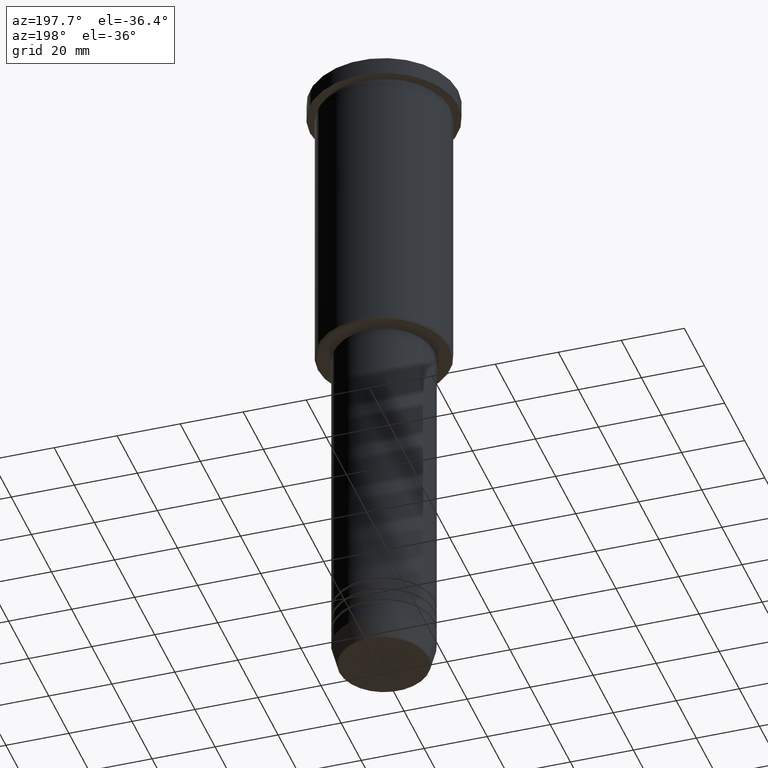
[diagram: clean part render]
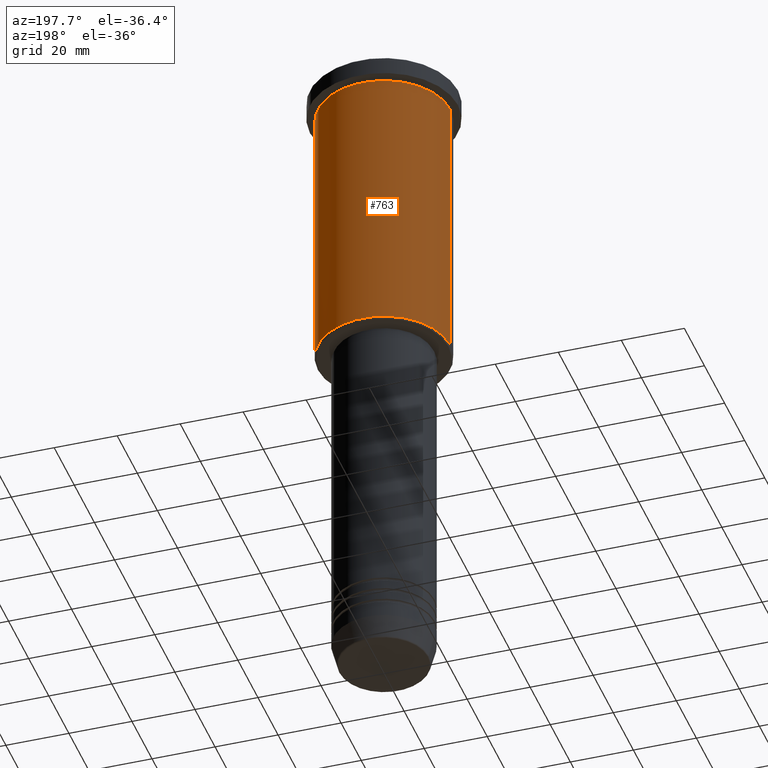
[diagram: same view with one face highlighted and labeled with its STEP entity id]
A machine part, auxiliary view. The second image highlights one B-rep face of the part: STEP entity #763.
In plain terms, the highlighted cylindrical surface (partial cylindrical patch) has radius 21 mm, axis along (-0, -0, 1).
Its self-contained STEP definition (entity closure, byte-faithful):
#4 = LINE ( 'NONE', #735, #821 ) ;
#48 = DIRECTION ( 'NONE',  ( -0.000000000000000000, -0.000000000000000000, 1.000000000000000000 ) ) ;
#62 = AXIS2_PLACEMENT_3D ( 'NONE', #594, #1045, #1057 ) ;
#69 = EDGE_CURVE ( 'NONE', #107, #564, #898, .T. ) ;
#107 = VERTEX_POINT ( 'NONE', #1064 ) ;
#113 = EDGE_CURVE ( 'NONE', #1084, #1150, #193, .T. ) ;
#119 = CARTESIAN_POINT ( 'NONE',  ( -21.00000000000000000, 2.571758278209441661E-15, -6.999999999999993783 ) ) ;
#170 = DIRECTION ( 'NONE',  ( -0.000000000000000000, -0.000000000000000000, 1.000000000000000000 ) ) ;
#193 = CIRCLE ( 'NONE', #257, 21.00000000000000000 ) ;
#257 = AXIS2_PLACEMENT_3D ( 'NONE', #944, #48, #960 ) ;
#266 = EDGE_CURVE ( 'NONE', #1084, #107, #4, .T. ) ;
#268 = DIRECTION ( 'NONE',  ( -0.000000000000000000, -0.000000000000000000, 1.000000000000000000 ) ) ;
#322 = CARTESIAN_POINT ( 'NONE',  ( 21.00000000000000000, 0.000000000000000000, -95.50000000000000000 ) ) ;
#461 = LINE ( 'NONE', #1103, #559 ) ;
#480 = ORIENTED_EDGE ( 'NONE', *, *, #792, .T. ) ;
#506 = ORIENTED_EDGE ( 'NONE', *, *, #113, .T. ) ;
#515 = ORIENTED_EDGE ( 'NONE', *, *, #69, .F. ) ;
#559 = VECTOR ( 'NONE', #170, 1000.000000000000000 ) ;
#564 = VERTEX_POINT ( 'NONE', #119 ) ;
#594 = CARTESIAN_POINT ( 'NONE',  ( 0.000000000000000000, 0.000000000000000000, -6.999999999999993783 ) ) ;
#609 = DIRECTION ( 'NONE',  ( -0.000000000000000000, -0.000000000000000000, 1.000000000000000000 ) ) ;
#614 = CARTESIAN_POINT ( 'NONE',  ( 0.000000000000000000, 0.000000000000000000, 0.000000000000000000 ) ) ;
#674 = CARTESIAN_POINT ( 'NONE',  ( -21.00000000000000000, 2.571758278209441661E-15, -95.50000000000000000 ) ) ;
#712 = ORIENTED_EDGE ( 'NONE', *, *, #266, .F. ) ;
#722 = DIRECTION ( 'NONE',  ( 1.000000000000000000, 0.000000000000000000, 0.000000000000000000 ) ) ;
#733 = FACE_OUTER_BOUND ( 'NONE', #987, .T. ) ;
#735 = CARTESIAN_POINT ( 'NONE',  ( 21.00000000000000000, 0.000000000000000000, 0.000000000000000000 ) ) ;
#763 = ADVANCED_FACE ( 'NONE', ( #733 ), #1166, .T. ) ;
#792 = EDGE_CURVE ( 'NONE', #1150, #564, #461, .T. ) ;
#821 = VECTOR ( 'NONE', #609, 1000.000000000000000 ) ;
#898 = CIRCLE ( 'NONE', #62, 21.00000000000000000 ) ;
#944 = CARTESIAN_POINT ( 'NONE',  ( 0.000000000000000000, 0.000000000000000000, -95.50000000000000000 ) ) ;
#960 = DIRECTION ( 'NONE',  ( -1.000000000000000000, 0.000000000000000000, 0.000000000000000000 ) ) ;
#987 = EDGE_LOOP ( 'NONE', ( #506, #480, #515, #712 ) ) ;
#1045 = DIRECTION ( 'NONE',  ( -0.000000000000000000, -0.000000000000000000, 1.000000000000000000 ) ) ;
#1057 = DIRECTION ( 'NONE',  ( 1.000000000000000000, 0.000000000000000000, 0.000000000000000000 ) ) ;
#1064 = CARTESIAN_POINT ( 'NONE',  ( 21.00000000000000000, 0.000000000000000000, -6.999999999999993783 ) ) ;
#1079 = AXIS2_PLACEMENT_3D ( 'NONE', #614, #268, #722 ) ;
#1084 = VERTEX_POINT ( 'NONE', #322 ) ;
#1103 = CARTESIAN_POINT ( 'NONE',  ( -21.00000000000000000, 2.571758278209441661E-15, 0.000000000000000000 ) ) ;
#1150 = VERTEX_POINT ( 'NONE', #674 ) ;
#1166 = CYLINDRICAL_SURFACE ( 'NONE', #1079, 21.00000000000000000 ) ;